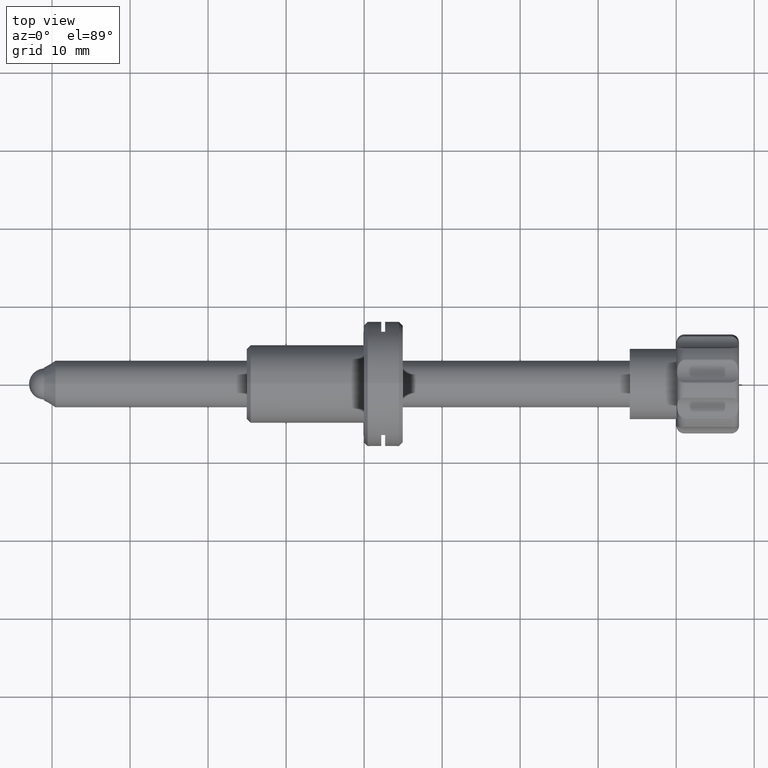
[diagram: clean part render]
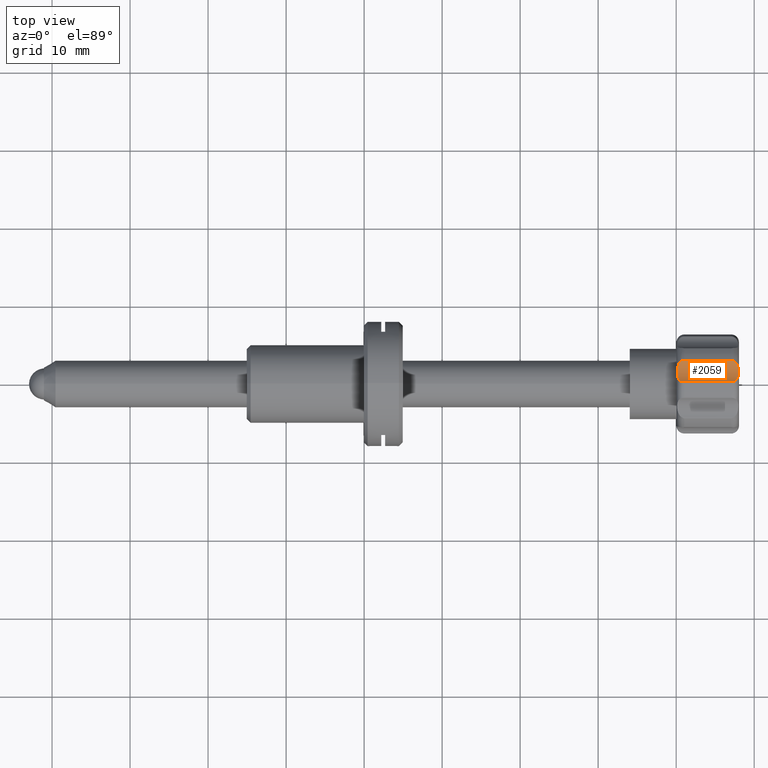
[diagram: same view with one face highlighted and labeled with its STEP entity id]
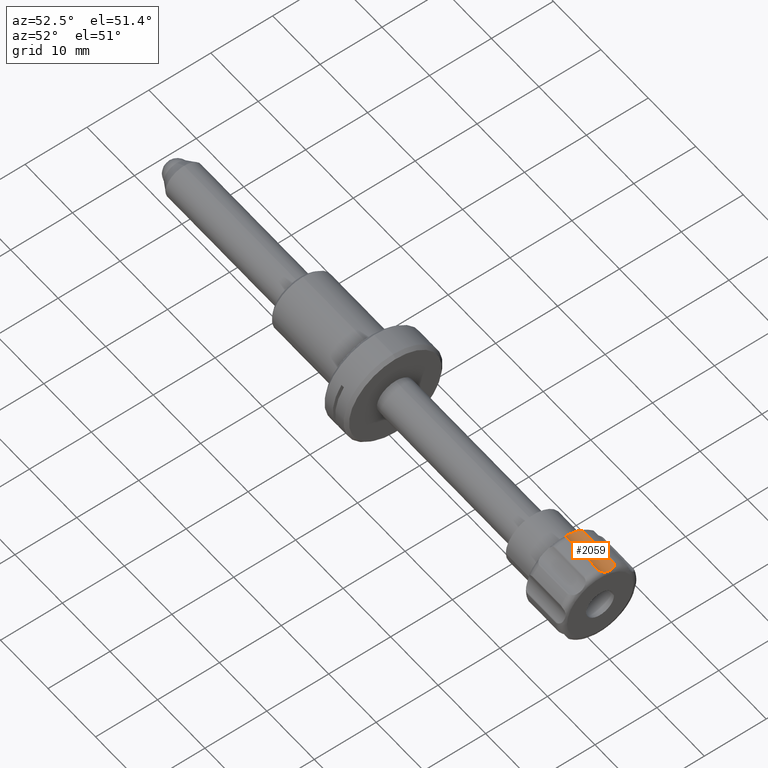
[diagram: same view with one face highlighted and labeled with its STEP entity id]
A machine part, top view. The second image highlights one B-rep face of the part: STEP entity #2059.
A second angle (auxiliary view) of the same face is appended — the face is thin or edge-on in the first view.
In plain terms, the highlighted cylindrical surface (edge-blend (fillet) strip) has radius 2.75 mm, axis along (-1, 0, -0).
Its self-contained STEP definition (entity closure, byte-faithful):
#87 = ORIENTED_EDGE ( 'NONE', *, *, #3360, .T. ) ;
#186 = CARTESIAN_POINT ( 'NONE',  ( 40.25821204246622600, 0.5906984552738671100, 5.935792562131472200 ) ) ;
#220 = CARTESIAN_POINT ( 'NONE',  ( 47.84178795753374700, 2.328853884465835700, 5.491720822340360200 ) ) ;
#434 = EDGE_CURVE ( 'NONE', #2581, #2215, #2282, .T. ) ;
#504 = CARTESIAN_POINT ( 'NONE',  ( 40.44775316104475100, 2.674865847404098500, 5.543003788699778100 ) ) ;
#520 = CARTESIAN_POINT ( 'NONE',  ( 40.44802519160614200, 0.3115576346949013300, 6.146907930689200900 ) ) ;
#541 = CARTESIAN_POINT ( 'NONE',  ( 47.65224683895524300, 0.3116872116896908800, 6.146759258765389000 ) ) ;
#555 = CARTESIAN_POINT ( 'NONE',  ( 47.65197480839384500, 2.675050857320120800, 5.543072088549576100 ) ) ;
#634 = VECTOR ( 'NONE', #2048, 1000.000000000000000 ) ;
#824 = CARTESIAN_POINT ( 'NONE',  ( 40.25804361074116100, 2.328516278191431300, 5.491664281090712600 ) ) ;
#837 = CARTESIAN_POINT ( 'NONE',  ( 40.65267950003190800, 0.1858513267847248000, 6.264923843083601600 ) ) ;
#848 = CARTESIAN_POINT ( 'NONE',  ( 47.55905215516280300, 0.2371321769934165200, 6.215005738689757900 ) ) ;
#852 = EDGE_LOOP ( 'NONE', ( #87, #2065, #1305, #2562 ) ) ;
#867 = CARTESIAN_POINT ( 'NONE',  ( 47.84195638925882600, 0.5909675687203319600, 5.935581013408107500 ) ) ;
#883 = CARTESIAN_POINT ( 'NONE',  ( 47.44732049996806500, 2.841959947667501900, 5.586329307439617000 ) ) ;
#935 = VERTEX_POINT ( 'NONE', #2754 ) ;
#1097 = CYLINDRICAL_SURFACE ( 'NONE', #3271, 2.750000000000000000 ) ;
#1141 = VERTEX_POINT ( 'NONE', #2078 ) ;
#1162 = CARTESIAN_POINT ( 'NONE',  ( 40.16648532775295200, 1.942761412327640900, 5.487058783508300200 ) ) ;
#1194 = CARTESIAN_POINT ( 'NONE',  ( 47.93351467224703600, 0.9272407237627818800, 5.746508560778517300 ) ) ;
#1250 = CARTESIAN_POINT ( 'NONE',  ( 47.44732049994645700, 0.1858513267748078700, 6.264923843093253500 ) ) ;
#1305 = ORIENTED_EDGE ( 'NONE', *, *, #3419, .T. ) ;
#1308 = B_SPLINE_CURVE_WITH_KNOTS ( 'NONE', 3,
 ( #2457, #848, #541, #2798, #867, #3123, #1194, #3454, #1534, #3769, #1862, #4092, #2185, #220, #2508, #555, #2811, #883 ),
 .UNSPECIFIED., .F., .F.,
 ( 4, 2, 2, 2, 2, 2, 2, 2, 4 ),
 ( 0.0004183084499995034200, 0.0008152739970678636400, 0.001212239544136223900, 0.001609205091204584300, 0.002006170638272944700, 0.002403136185341305000, 0.002800101732409665200, 0.003197067279478025400, 0.003594032826546385600 ),
 .UNSPECIFIED. ) ;
#1503 = CARTESIAN_POINT ( 'NONE',  ( 40.13345850479819200, 1.549779904911890800, 5.538704863912120600 ) ) ;
#1534 = CARTESIAN_POINT ( 'NONE',  ( 47.96654149520178800, 1.296836581130193800, 5.603327958011656000 ) ) ;
#1578 = DIRECTION ( 'NONE',  ( -1.000000000000000000, 2.797561225103415000E-017, -1.489432096673009000E-016 ) ) ;
#1705 = CARTESIAN_POINT ( 'NONE',  ( 48.09076659436073700, 2.104035829452168400, 8.235474074294785400 ) ) ;
#1824 = CARTESIAN_POINT ( 'NONE',  ( 40.13921337448600500, 1.170747534568504800, 5.645340930566740100 ) ) ;
#1862 = CARTESIAN_POINT ( 'NONE',  ( 47.96078662551399000, 1.680569229165328000, 5.515089398913952200 ) ) ;
#1972 = VECTOR ( 'NONE', #1578, 1000.000000000000000 ) ;
#2048 = DIRECTION ( 'NONE',  ( 1.000000000000000000, -2.797561225103415000E-017, 1.489432096673009000E-016 ) ) ;
#2059 = ADVANCED_FACE ( 'NONE', ( #3207 ), #1097, .F. ) ;
#2065 = ORIENTED_EDGE ( 'NONE', *, *, #434, .T. ) ;
#2078 = CARTESIAN_POINT ( 'NONE',  ( 47.44732049996806500, 2.841959947667501900, 5.586329307439617000 ) ) ;
#2149 = CARTESIAN_POINT ( 'NONE',  ( 40.18803222192695300, 0.8097606479874824800, 5.805746348784131400 ) ) ;
#2185 = CARTESIAN_POINT ( 'NONE',  ( 47.91196777807302000, 2.074258821089520800, 5.482686687800218700 ) ) ;
#2204 = CARTESIAN_POINT ( 'NONE',  ( 48.09076659436073700, 2.841959947679413700, 5.586329307442937000 ) ) ;
#2215 = VERTEX_POINT ( 'NONE', #1250 ) ;
#2282 = LINE ( 'NONE', #3316, #634 ) ;
#2457 = CARTESIAN_POINT ( 'NONE',  ( 47.44732049994645700, 0.1858513267748078700, 6.264923843093253500 ) ) ;
#2472 = CARTESIAN_POINT ( 'NONE',  ( 40.30785379086183400, 0.4876431095724113600, 6.007838289428796900 ) ) ;
#2508 = CARTESIAN_POINT ( 'NONE',  ( 47.79214620913816700, 2.453837714627015800, 5.505506078873612100 ) ) ;
#2562 = ORIENTED_EDGE ( 'NONE', *, *, #3038, .T. ) ;
#2581 = VERTEX_POINT ( 'NONE', #3394 ) ;
#2608 = DIRECTION ( 'NONE',  ( 0.0000000000000000000, 0.9999319581571398700, 0.01166529279649573100 ) ) ;
#2754 = CARTESIAN_POINT ( 'NONE',  ( 40.65267950005351600, 2.841959947680831300, 5.586329307443329600 ) ) ;
#2766 = CARTESIAN_POINT ( 'NONE',  ( 40.30701591892974300, 2.452269185775981500, 5.505276887688929800 ) ) ;
#2778 = CARTESIAN_POINT ( 'NONE',  ( 40.53974654408669000, 0.2376835312553586300, 6.214469036207886700 ) ) ;
#2798 = CARTESIAN_POINT ( 'NONE',  ( 47.79298408107022300, 0.4889094878726065200, 6.006884823458534600 ) ) ;
#2811 = CARTESIAN_POINT ( 'NONE',  ( 47.56025345591330500, 2.772278388145141800, 5.566919381636489900 ) ) ;
#2980 = DIRECTION ( 'NONE',  ( -1.000000000000000000, 2.797561225103415000E-017, -1.489432096673009000E-016 ) ) ;
#3038 = EDGE_CURVE ( 'NONE', #1141, #935, #3566, .T. ) ;
#3061 = CARTESIAN_POINT ( 'NONE',  ( 40.65267950005351600, 2.841959947680831300, 5.586329307443329600 ) ) ;
#3091 = CARTESIAN_POINT ( 'NONE',  ( 40.18767208449505500, 2.072676849045973000, 5.482675449713498000 ) ) ;
#3123 = CARTESIAN_POINT ( 'NONE',  ( 47.91232791550492500, 0.8111433655471166300, 5.804977678509292400 ) ) ;
#3207 = FACE_OUTER_BOUND ( 'NONE', #852, .T. ) ;
#3271 = AXIS2_PLACEMENT_3D ( 'NONE', #1705, #2980, #2608 ) ;
#3316 = CARTESIAN_POINT ( 'NONE',  ( 48.09076659436073700, 0.1858513267758615000, 6.264923843092229400 ) ) ;
#3360 = EDGE_CURVE ( 'NONE', #935, #2581, #4119, .T. ) ;
#3388 = CARTESIAN_POINT ( 'NONE',  ( 40.54094784483715600, 2.773019611197510100, 5.567125850672520700 ) ) ;
#3394 = CARTESIAN_POINT ( 'NONE',  ( 40.65267950003190800, 0.1858513267847248000, 6.264923843083601600 ) ) ;
#3415 = CARTESIAN_POINT ( 'NONE',  ( 40.13925720084243000, 1.681219964017556500, 5.514991986100747900 ) ) ;
#3419 = EDGE_CURVE ( 'NONE', #2215, #1141, #1308, .T. ) ;
#3454 = CARTESIAN_POINT ( 'NONE',  ( 47.96074279915753600, 1.170129819464268600, 5.645567587033848900 ) ) ;
#3566 = LINE ( 'NONE', #2204, #1972 ) ;
#3731 = CARTESIAN_POINT ( 'NONE',  ( 40.13351138985507300, 1.295194625247033700, 5.603832056402549000 ) ) ;
#3769 = CARTESIAN_POINT ( 'NONE',  ( 47.96648861014491400, 1.551462442053139500, 5.538359605924136500 ) ) ;
#4056 = CARTESIAN_POINT ( 'NONE',  ( 40.16640943970274700, 0.9276919187978721600, 5.746291126524183400 ) ) ;
#4092 = CARTESIAN_POINT ( 'NONE',  ( 47.93359056029723300, 1.942261214741054100, 5.487084415305279400 ) ) ;
#4119 = B_SPLINE_CURVE_WITH_KNOTS ( 'NONE', 3,
 ( #3061, #3388, #504, #2766, #824, #3091, #1162, #3415, #1503, #3731, #1824, #4056, #2149, #186, #2472, #520, #2778, #837 ),
 .UNSPECIFIED., .F., .F.,
 ( 4, 2, 2, 2, 2, 2, 2, 2, 4 ),
 ( 0.0004183084499995030900, 0.0008152739970678632100, 0.001212239544136223400, 0.001609205091204583700, 0.002006170638272943400, 0.002403136185341303700, 0.002800101732409663500, 0.003197067279478022800, 0.003594032826546382600 ),
 .UNSPECIFIED. ) ;